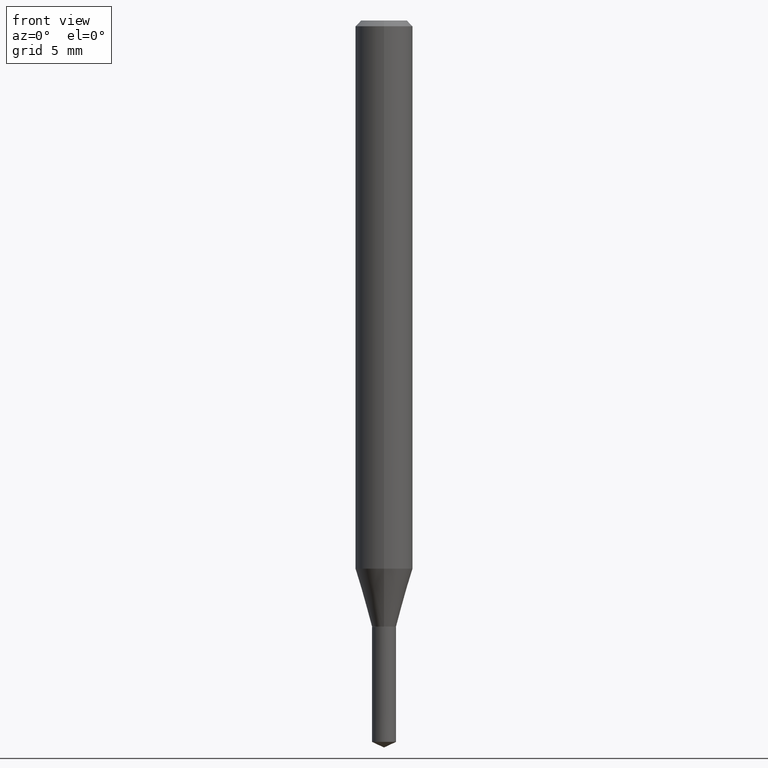
[diagram: clean part render]
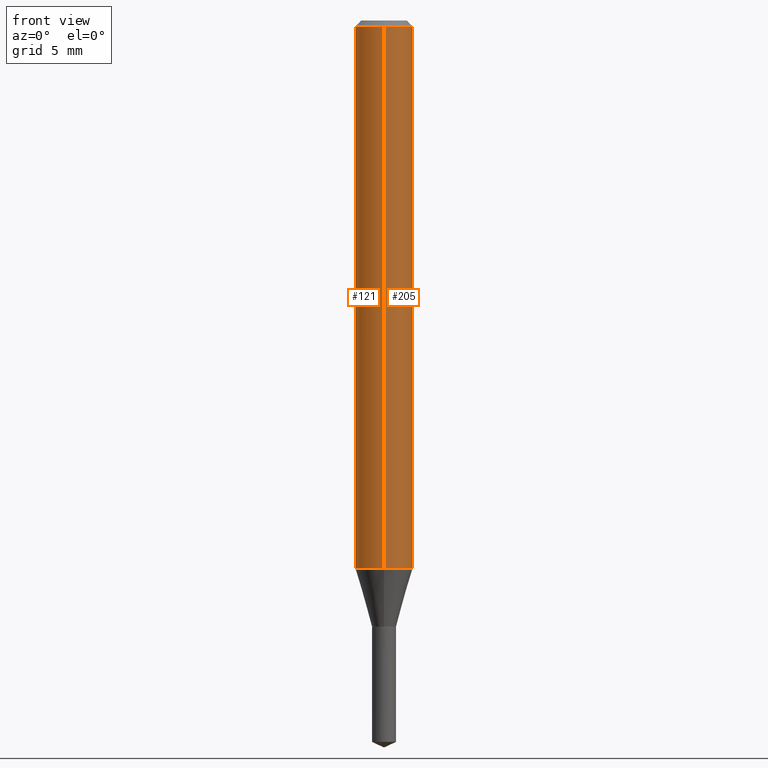
[diagram: same view with one multi-face feature highlighted, each face labeled with its STEP entity id]
A machine part, front view. The highlighted faces form ONE feature: a constant-radius fillet chain: 2 tangent blend faces with common blend radius 1.5 mm. The faces share edges in the B-rep.
Their STEP definitions:
[1] entity #205 (Cylinder):
#109=VERTEX_POINT('',#246);
#133=VERTEX_POINT('',#275);
#147=EDGE_CURVE('',#179,#185,#291,.T.);
#167=EDGE_CURVE('',#109,#185,#312,.T.);
#179=VERTEX_POINT('',#326);
#185=VERTEX_POINT('',#333);
#187=EDGE_CURVE('',#179,#133,#335,.T.);
#199=EDGE_CURVE('',#133,#109,#347,.T.);
#205=ADVANCED_FACE('',(#354),#355,.T.);
#246=CARTESIAN_POINT('',(1.83690953073357E-016,-1.5,-28.649));
#275=CARTESIAN_POINT('',(0.0,1.5,-28.649));
#291=CIRCLE('',#452,1.5);
#312=LINE('',#482,#483);
#326=CARTESIAN_POINT('',(0.0,1.5,-0.300000000000001));
#333=CARTESIAN_POINT('',(1.83690953073357E-016,-1.5,-0.300000000000001));
#335=LINE('',#508,#509);
#347=CIRCLE('',#523,1.5);
#354=FACE_OUTER_BOUND('',#532,.T.);
#355=CYLINDRICAL_SURFACE('',#533,1.5);
#452=AXIS2_PLACEMENT_3D('',#625,#626,#627);
#482=CARTESIAN_POINT('',(1.83690953073357E-016,-1.5,-14.4745));
#483=VECTOR('',#649,1.0);
#508=CARTESIAN_POINT('',(-1.83690953073357E-016,1.5,-14.4745));
#509=VECTOR('',#677,1.0);
#523=AXIS2_PLACEMENT_3D('',#685,#686,#687);
#532=EDGE_LOOP('',(#696,#697,#698,#699));
#533=AXIS2_PLACEMENT_3D('',#700,#701,#702);
#625=CARTESIAN_POINT('',(0.0,0.0,-0.300000000000001));
#626=DIRECTION('',(0.0,0.0,-1.0));
#627=DIRECTION('',(0.0,1.0,0.0));
#649=DIRECTION('',(-0.0,-0.0,1.0));
#677=DIRECTION('',(0.0,0.0,-1.0));
#685=CARTESIAN_POINT('',(0.0,0.0,-28.649));
#686=DIRECTION('',(0.0,0.0,-1.0));
#687=DIRECTION('',(0.0,1.0,0.0));
#696=ORIENTED_EDGE('',*,*,#187,.F.);
#697=ORIENTED_EDGE('',*,*,#147,.T.);
#698=ORIENTED_EDGE('',*,*,#167,.F.);
#699=ORIENTED_EDGE('',*,*,#199,.F.);
#700=CARTESIAN_POINT('',(0.0,0.0,-14.4745));
#701=DIRECTION('',(-0.0,-0.0,1.0));
#702=DIRECTION('',(0.0,1.0,0.0));
[2] entity #121 (Cylinder):
#91=EDGE_CURVE('',#185,#179,#226,.T.);
#109=VERTEX_POINT('',#246);
#121=ADVANCED_FACE('',(#259),#260,.T.);
#133=VERTEX_POINT('',#275);
#167=EDGE_CURVE('',#109,#185,#312,.T.);
#179=VERTEX_POINT('',#326);
#185=VERTEX_POINT('',#333);
#187=EDGE_CURVE('',#179,#133,#335,.T.);
#189=EDGE_CURVE('',#109,#133,#337,.T.);
#226=CIRCLE('',#369,1.5);
#246=CARTESIAN_POINT('',(1.83690953073357E-016,-1.5,-28.649));
#259=FACE_OUTER_BOUND('',#414,.T.);
#260=CYLINDRICAL_SURFACE('',#415,1.5);
#275=CARTESIAN_POINT('',(0.0,1.5,-28.649));
#312=LINE('',#482,#483);
#326=CARTESIAN_POINT('',(0.0,1.5,-0.300000000000001));
#333=CARTESIAN_POINT('',(1.83690953073357E-016,-1.5,-0.300000000000001));
#335=LINE('',#508,#509);
#337=CIRCLE('',#512,1.5);
#369=AXIS2_PLACEMENT_3D('',#535,#536,#537);
#414=EDGE_LOOP('',(#577,#578,#579,#580));
#415=AXIS2_PLACEMENT_3D('',#581,#582,#583);
#482=CARTESIAN_POINT('',(1.83690953073357E-016,-1.5,-14.4745));
#483=VECTOR('',#649,1.0);
#508=CARTESIAN_POINT('',(-1.83690953073357E-016,1.5,-14.4745));
#509=VECTOR('',#677,1.0);
#512=AXIS2_PLACEMENT_3D('',#678,#679,#680);
#535=CARTESIAN_POINT('',(0.0,0.0,-0.300000000000001));
#536=DIRECTION('',(0.0,0.0,-1.0));
#537=DIRECTION('',(0.0,1.0,0.0));
#577=ORIENTED_EDGE('',*,*,#187,.T.);
#578=ORIENTED_EDGE('',*,*,#189,.F.);
#579=ORIENTED_EDGE('',*,*,#167,.T.);
#580=ORIENTED_EDGE('',*,*,#91,.T.);
#581=CARTESIAN_POINT('',(0.0,0.0,-14.4745));
#582=DIRECTION('',(-0.0,-0.0,1.0));
#583=DIRECTION('',(0.0,1.0,0.0));
#649=DIRECTION('',(-0.0,-0.0,1.0));
#677=DIRECTION('',(0.0,0.0,-1.0));
#678=CARTESIAN_POINT('',(0.0,0.0,-28.649));
#679=DIRECTION('',(0.0,0.0,-1.0));
#680=DIRECTION('',(0.0,1.0,0.0));